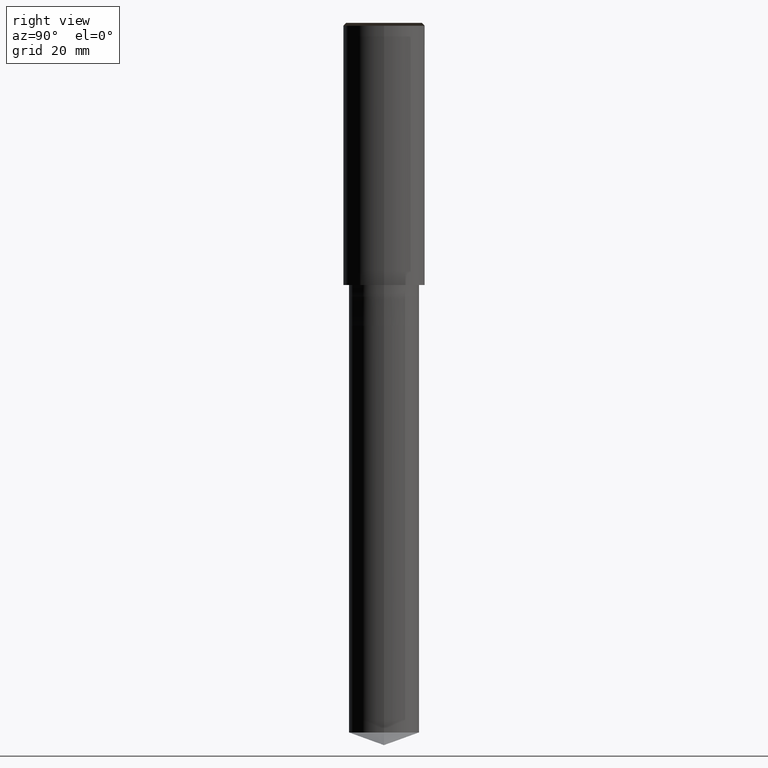
[diagram: clean part render]
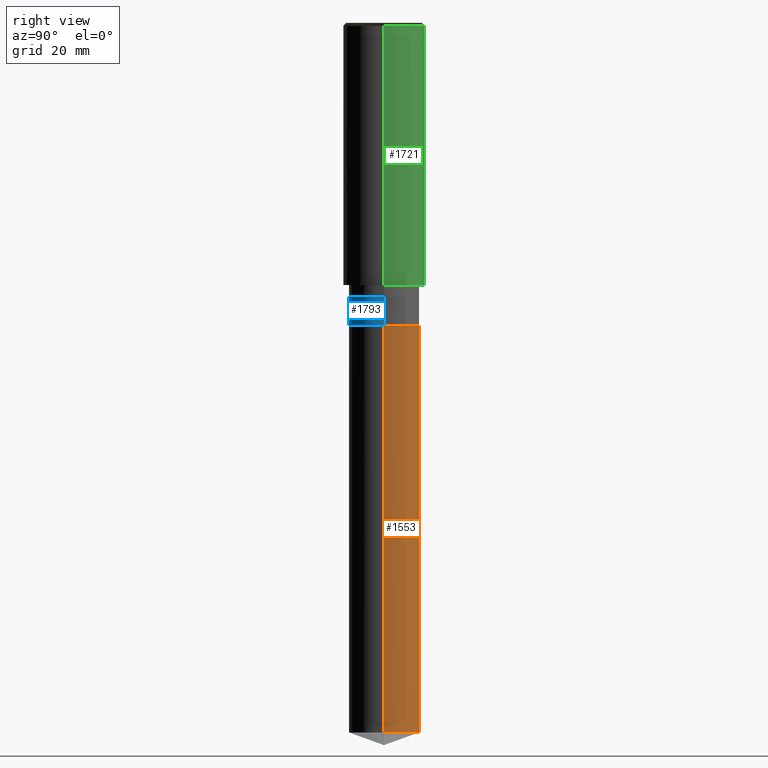
[diagram: same view with three faces highlighted in distinct colors, each labeled with its STEP entity id]
A machine part, right view with three faces highlighted in distinct colors.
Their STEP definitions:

[orange] entity #1553 — the highlighted face is a freeform B-spline surface patch.
#1455=CARTESIAN_POINT('',(6.0,0.0,-76.816178594403));
#1456=CARTESIAN_POINT('',(6.0,6.0,-76.816178594403));
#1457=CARTESIAN_POINT('',(0.0,6.0,-76.816178594403));
#1458=CARTESIAN_POINT('',(-6.0,6.0,-76.816178594403));
#1459=CARTESIAN_POINT('',(-6.0,0.0,-76.816178594403));
#1460=CARTESIAN_POINT('',(6.0,0.0,-7.0));
#1461=CARTESIAN_POINT('',(6.0,6.0,-7.0));
#1462=CARTESIAN_POINT('',(0.0,6.0,-7.0));
#1463=CARTESIAN_POINT('',(-6.0,6.0,-7.0));
#1464=CARTESIAN_POINT('',(-6.0,0.0,-7.0));
#1534=(
BOUNDED_SURFACE()
B_SPLINE_SURFACE(1,2,(
(#1455,#1456,#1457,#1458,#1459),
(#1460,#1461,#1462,#1463,#1464)
), .UNSPECIFIED.,.F.,.F.,.F.)
B_SPLINE_SURFACE_WITH_KNOTS((2,2),(3,2,3),(
0.0,1.0),(
0.0,0.5,1.0), .UNSPECIFIED.)
GEOMETRIC_REPRESENTATION_ITEM()
RATIONAL_B_SPLINE_SURFACE(((1.0,0.707106781187,1.0,0.707106781187,1.0),
(1.0,0.707106781187,1.0,0.707106781187,1.0)
))
REPRESENTATION_ITEM('')
SURFACE()
);
#1535=(
BOUNDED_CURVE()
B_SPLINE_CURVE(2,(#1459,#1458,#1457,#1456,#1455),.UNSPECIFIED.,.F.,.F.)
B_SPLINE_CURVE_WITH_KNOTS((3,2,3),
(0.0,0.5,1.0),.UNSPECIFIED.)
CURVE()
GEOMETRIC_REPRESENTATION_ITEM()
RATIONAL_B_SPLINE_CURVE((1.0,0.707106781187,1.0,0.707106781187,1.0))
REPRESENTATION_ITEM('')
);
#1536=(
BOUNDED_CURVE()
B_SPLINE_CURVE(1,(#1455,#1460),.UNSPECIFIED.,.F.,.F.)
B_SPLINE_CURVE_WITH_KNOTS((2,2),
(0.0,1.0),.UNSPECIFIED.)
CURVE()
GEOMETRIC_REPRESENTATION_ITEM()
RATIONAL_B_SPLINE_CURVE((1.0,1.0))
REPRESENTATION_ITEM('')
);
#1537=(
BOUNDED_CURVE()
B_SPLINE_CURVE(2,(#1460,#1461,#1462,#1463,#1464),.UNSPECIFIED.,.F.,.F.)
B_SPLINE_CURVE_WITH_KNOTS((3,2,3),
(0.0,0.5,1.0),.UNSPECIFIED.)
CURVE()
GEOMETRIC_REPRESENTATION_ITEM()
RATIONAL_B_SPLINE_CURVE((1.0,0.707106781187,1.0,0.707106781187,1.0))
REPRESENTATION_ITEM('')
);
#1538=(
BOUNDED_CURVE()
B_SPLINE_CURVE(1,(#1464,#1459),.UNSPECIFIED.,.F.,.F.)
B_SPLINE_CURVE_WITH_KNOTS((2,2),
(0.0,1.0),.UNSPECIFIED.)
CURVE()
GEOMETRIC_REPRESENTATION_ITEM()
RATIONAL_B_SPLINE_CURVE((1.0,1.0))
REPRESENTATION_ITEM('')
);
#1539=VERTEX_POINT('',#1455);
#1540=VERTEX_POINT('',#1459);
#1541=VERTEX_POINT('',#1460);
#1542=VERTEX_POINT('',#1464);
#1543=EDGE_CURVE('',#1540,#1539,#1535,.T.);
#1544=EDGE_CURVE('',#1539,#1541,#1536,.T.);
#1545=EDGE_CURVE('',#1541,#1542,#1537,.T.);
#1546=EDGE_CURVE('',#1542,#1540,#1538,.T.);
#1547=ORIENTED_EDGE('',*,*,#1543,.T.);
#1548=ORIENTED_EDGE('',*,*,#1544,.T.);
#1549=ORIENTED_EDGE('',*,*,#1545,.T.);
#1550=ORIENTED_EDGE('',*,*,#1546,.T.);
#1551=EDGE_LOOP('',(#1547,#1548,#1549,#1550));
#1552=FACE_OUTER_BOUND('',#1551,.T.);
#1553=ADVANCED_FACE('',(#1552),#1534,.T.);

[blue] entity #1793 — the highlighted face is a freeform B-spline surface patch.
#1460=CARTESIAN_POINT('',(6.0,0.0,-7.0));
#1464=CARTESIAN_POINT('',(-6.0,0.0,-7.0));
#1469=CARTESIAN_POINT('',(-6.0,-6.0,-7.0));
#1470=CARTESIAN_POINT('',(0.0,-6.0,-7.0));
#1471=CARTESIAN_POINT('',(6.0,-6.0,-7.0));
#1472=CARTESIAN_POINT('',(6.0,0.0,-2.0));
#1476=CARTESIAN_POINT('',(-6.0,0.0,-2.0));
#1498=CARTESIAN_POINT('',(-6.0,-6.0,-2.0));
#1499=CARTESIAN_POINT('',(0.0,-6.0,-2.0));
#1500=CARTESIAN_POINT('',(6.0,-6.0,-2.0));
#1774=(
BOUNDED_SURFACE()
B_SPLINE_SURFACE(1,2,(
(#1464,#1469,#1470,#1471,#1460),
(#1476,#1498,#1499,#1500,#1472)
), .UNSPECIFIED.,.F.,.F.,.F.)
B_SPLINE_SURFACE_WITH_KNOTS((2,2),(3,2,3),(
0.0,1.0),(
0.0,0.5,1.0), .UNSPECIFIED.)
GEOMETRIC_REPRESENTATION_ITEM()
RATIONAL_B_SPLINE_SURFACE(((1.0,0.707106781187,1.0,0.707106781187,1.0),
(1.0,0.707106781187,1.0,0.707106781187,1.0)
))
REPRESENTATION_ITEM('')
SURFACE()
);
#1775=(
BOUNDED_CURVE()
B_SPLINE_CURVE(2,(#1460,#1471,#1470,#1469,#1464),.UNSPECIFIED.,.F.,.F.)
B_SPLINE_CURVE_WITH_KNOTS((3,2,3),
(0.0,0.5,1.0),.UNSPECIFIED.)
CURVE()
GEOMETRIC_REPRESENTATION_ITEM()
RATIONAL_B_SPLINE_CURVE((1.0,0.707106781187,1.0,0.707106781187,1.0))
REPRESENTATION_ITEM('')
);
#1776=(
BOUNDED_CURVE()
B_SPLINE_CURVE(1,(#1464,#1476),.UNSPECIFIED.,.F.,.F.)
B_SPLINE_CURVE_WITH_KNOTS((2,2),
(0.0,1.0),.UNSPECIFIED.)
CURVE()
GEOMETRIC_REPRESENTATION_ITEM()
RATIONAL_B_SPLINE_CURVE((1.0,1.0))
REPRESENTATION_ITEM('')
);
#1777=(
BOUNDED_CURVE()
B_SPLINE_CURVE(2,(#1476,#1498,#1499,#1500,#1472),.UNSPECIFIED.,.F.,.F.)
B_SPLINE_CURVE_WITH_KNOTS((3,2,3),
(0.0,0.5,1.0),.UNSPECIFIED.)
CURVE()
GEOMETRIC_REPRESENTATION_ITEM()
RATIONAL_B_SPLINE_CURVE((1.0,0.707106781187,1.0,0.707106781187,1.0))
REPRESENTATION_ITEM('')
);
#1778=(
BOUNDED_CURVE()
B_SPLINE_CURVE(1,(#1472,#1460),.UNSPECIFIED.,.F.,.F.)
B_SPLINE_CURVE_WITH_KNOTS((2,2),
(0.0,1.0),.UNSPECIFIED.)
CURVE()
GEOMETRIC_REPRESENTATION_ITEM()
RATIONAL_B_SPLINE_CURVE((1.0,1.0))
REPRESENTATION_ITEM('')
);
#1779=VERTEX_POINT('',#1460);
#1780=VERTEX_POINT('',#1464);
#1781=VERTEX_POINT('',#1472);
#1782=VERTEX_POINT('',#1476);
#1783=EDGE_CURVE('',#1779,#1780,#1775,.T.);
#1784=EDGE_CURVE('',#1780,#1782,#1776,.T.);
#1785=EDGE_CURVE('',#1782,#1781,#1777,.T.);
#1786=EDGE_CURVE('',#1781,#1779,#1778,.T.);
#1787=ORIENTED_EDGE('',*,*,#1783,.T.);
#1788=ORIENTED_EDGE('',*,*,#1784,.T.);
#1789=ORIENTED_EDGE('',*,*,#1785,.T.);
#1790=ORIENTED_EDGE('',*,*,#1786,.T.);
#1791=EDGE_LOOP('',(#1787,#1788,#1789,#1790));
#1792=FACE_OUTER_BOUND('',#1791,.T.);
#1793=ADVANCED_FACE('',(#1792),#1774,.T.);

[green] entity #1721 — the highlighted face is a freeform B-spline surface patch.
#1482=CARTESIAN_POINT('',(7.0,0.0,0.0));
#1483=CARTESIAN_POINT('',(7.0,7.0,0.0));
#1484=CARTESIAN_POINT('',(0.0,7.0,0.0));
#1485=CARTESIAN_POINT('',(-7.0,7.0,0.0));
#1486=CARTESIAN_POINT('',(-7.0,0.0,0.0));
#1487=CARTESIAN_POINT('',(7.0,0.0,44.5));
#1488=CARTESIAN_POINT('',(7.0,7.0,44.5));
#1489=CARTESIAN_POINT('',(0.0,7.0,44.5));
#1490=CARTESIAN_POINT('',(-7.0,7.0,44.5));
#1491=CARTESIAN_POINT('',(-7.0,0.0,44.5));
#1702=(
BOUNDED_SURFACE()
B_SPLINE_SURFACE(1,2,(
(#1482,#1483,#1484,#1485,#1486),
(#1487,#1488,#1489,#1490,#1491)
), .UNSPECIFIED.,.F.,.F.,.F.)
B_SPLINE_SURFACE_WITH_KNOTS((2,2),(3,2,3),(
0.0,1.0),(
0.0,0.5,1.0), .UNSPECIFIED.)
GEOMETRIC_REPRESENTATION_ITEM()
RATIONAL_B_SPLINE_SURFACE(((1.0,0.707106781187,1.0,0.707106781187,1.0),
(1.0,0.707106781187,1.0,0.707106781187,1.0)
))
REPRESENTATION_ITEM('')
SURFACE()
);
#1703=(
BOUNDED_CURVE()
B_SPLINE_CURVE(2,(#1486,#1485,#1484,#1483,#1482),.UNSPECIFIED.,.F.,.F.)
B_SPLINE_CURVE_WITH_KNOTS((3,2,3),
(0.0,0.5,1.0),.UNSPECIFIED.)
CURVE()
GEOMETRIC_REPRESENTATION_ITEM()
RATIONAL_B_SPLINE_CURVE((1.0,0.707106781187,1.0,0.707106781187,1.0))
REPRESENTATION_ITEM('')
);
#1704=(
BOUNDED_CURVE()
B_SPLINE_CURVE(1,(#1482,#1487),.UNSPECIFIED.,.F.,.F.)
B_SPLINE_CURVE_WITH_KNOTS((2,2),
(0.0,1.0),.UNSPECIFIED.)
CURVE()
GEOMETRIC_REPRESENTATION_ITEM()
RATIONAL_B_SPLINE_CURVE((1.0,1.0))
REPRESENTATION_ITEM('')
);
#1705=(
BOUNDED_CURVE()
B_SPLINE_CURVE(2,(#1487,#1488,#1489,#1490,#1491),.UNSPECIFIED.,.F.,.F.)
B_SPLINE_CURVE_WITH_KNOTS((3,2,3),
(0.0,0.5,1.0),.UNSPECIFIED.)
CURVE()
GEOMETRIC_REPRESENTATION_ITEM()
RATIONAL_B_SPLINE_CURVE((1.0,0.707106781187,1.0,0.707106781187,1.0))
REPRESENTATION_ITEM('')
);
#1706=(
BOUNDED_CURVE()
B_SPLINE_CURVE(1,(#1491,#1486),.UNSPECIFIED.,.F.,.F.)
B_SPLINE_CURVE_WITH_KNOTS((2,2),
(0.0,1.0),.UNSPECIFIED.)
CURVE()
GEOMETRIC_REPRESENTATION_ITEM()
RATIONAL_B_SPLINE_CURVE((1.0,1.0))
REPRESENTATION_ITEM('')
);
#1707=VERTEX_POINT('',#1482);
#1708=VERTEX_POINT('',#1486);
#1709=VERTEX_POINT('',#1487);
#1710=VERTEX_POINT('',#1491);
#1711=EDGE_CURVE('',#1708,#1707,#1703,.T.);
#1712=EDGE_CURVE('',#1707,#1709,#1704,.T.);
#1713=EDGE_CURVE('',#1709,#1710,#1705,.T.);
#1714=EDGE_CURVE('',#1710,#1708,#1706,.T.);
#1715=ORIENTED_EDGE('',*,*,#1711,.T.);
#1716=ORIENTED_EDGE('',*,*,#1712,.T.);
#1717=ORIENTED_EDGE('',*,*,#1713,.T.);
#1718=ORIENTED_EDGE('',*,*,#1714,.T.);
#1719=EDGE_LOOP('',(#1715,#1716,#1717,#1718));
#1720=FACE_OUTER_BOUND('',#1719,.T.);
#1721=ADVANCED_FACE('',(#1720),#1702,.T.);